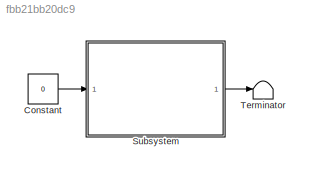
MODEL slx_fbb21bb20dc9
KIND model
CONFIG AbsTol = auto
CONFIG EnableMultiTasking = off
CONFIG FixedStep = auto
CONFIG MaxStep = auto
CONFIG MinStep = auto
CONFIG RelTol = 1e-3
CONFIG SampleTimeConstraint = Unconstrained
CONFIG SolverName = VariableStepAuto
CONFIG StartTime = 0.0
CONFIG StopTime = 10.0
BLOCK [Constant] Constant
  Value = 0
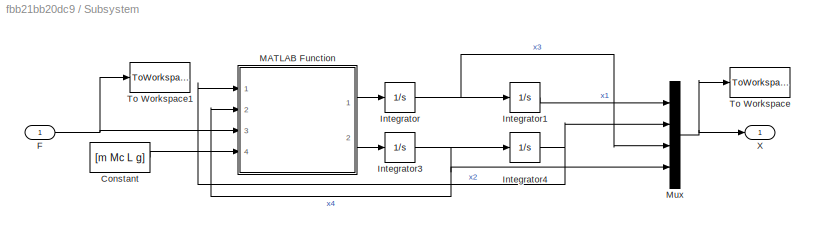
BLOCK [SubSystem] Subsystem
  Ports = [1, 1]
  RequestExecContextInheritance = off
BLOCK [Constant] Subsystem/Constant
  Value = [m Mc L g]
BLOCK [Inport] Subsystem/F
BLOCK [Integrator] Subsystem/Integrator
  InitialCondition = x0(3)
  Ports = [1, 1]
BLOCK [Integrator] Subsystem/Integrator1
  InitialCondition = x0(1)
  Ports = [1, 1]
BLOCK [Integrator] Subsystem/Integrator3
  InitialCondition = x0(4)
  Ports = [1, 1]
BLOCK [Integrator] Subsystem/Integrator4
  InitialCondition = x0(2)
  Ports = [1, 1]
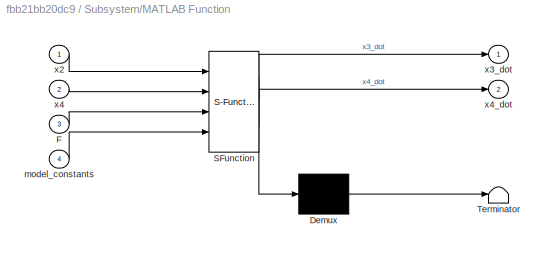
BLOCK [SubSystem] Subsystem/MATLAB Function
  ErrorFcn = Stateflow.Translate.translate
  PermitHierarchicalResolution = ExplicitOnly
  Ports = [4, 2]
  RequestExecContextInheritance = off
  SFBlockType = MATLAB Function
  TreatAsAtomicUnit = on
BLOCK [Demux] Subsystem/MATLAB Function/ Demux 
  Outputs = 1
  Ports = [1, 1]
BLOCK [S-Function] Subsystem/MATLAB Function/ SFunction 
  EnableBusSupport = off
  FunctionName = sf_sfun
  PortCounts = [4 3]
  Ports = [4, 3]
  SFcnIsStateOwnerBlock = off
  SFunctionDeploymentMode = off
  Tag = Stateflow S-Function 2
BLOCK [Terminator] Subsystem/MATLAB Function/ Terminator 
BLOCK [Inport] Subsystem/MATLAB Function/F
  Port = 3
BLOCK [Inport] Subsystem/MATLAB Function/model_constants
  Port = 4
BLOCK [Inport] Subsystem/MATLAB Function/x2
BLOCK [Outport] Subsystem/MATLAB Function/x3_dot
BLOCK [Inport] Subsystem/MATLAB Function/x4
  Port = 2
BLOCK [Outport] Subsystem/MATLAB Function/x4_dot
  Port = 2
BLOCK [Mux] Subsystem/Mux
  DisplayOption = bar
  Ports = [4, 1]
BLOCK [ToWorkspace] Subsystem/To Workspace
  FixptAsFi = on
  MaxDataPoints = inf
  Ports = [1]
  SampleTime = -1
  VariableName = pendulum
BLOCK [ToWorkspace] Subsystem/To Workspace1
  FixptAsFi = on
  MaxDataPoints = inf
  Ports = [1]
  SampleTime = -1
  VariableName = simout1
BLOCK [Outport] Subsystem/X
BLOCK [Terminator] Terminator
LINE Constant:1 -> Subsystem:1
LINE Subsystem/Constant:1 -> Subsystem/MATLAB Function:4
NET Subsystem/F:1 -> Subsystem/MATLAB Function:3, Subsystem/To Workspace1:1
LINE Subsystem/Integrator1:1 -> Subsystem/Mux:1
NET Subsystem/Integrator3:1 -> Subsystem/Integrator4:1, Subsystem/MATLAB Function:2, Subsystem/Mux:4
NET Subsystem/Integrator4:1 -> Subsystem/MATLAB Function:1, Subsystem/Mux:2
NET Subsystem/Integrator:1 -> Subsystem/Integrator1:1, Subsystem/Mux:3
LINE Subsystem/MATLAB Function:1 -> Subsystem/Integrator:1
LINE Subsystem/MATLAB Function:2 -> Subsystem/Integrator3:1
NET Subsystem/Mux:1 -> Subsystem/To Workspace:1, Subsystem/X:1
LINE Subsystem:1 -> Terminator:1
note: NET lines group one-source signal fan-out (src -> all destinations, sorted); 1:1 wires keep LINE
CHART Subsystem/MATLAB Function states=1 transitions=1
  STATE_LABEL 'eML_blk_kernel()'
  STATE_LABEL 'SCRIPT:\nfunction [x3_dot, x4_dot]= nonlineqn(x2, x4, F, model_constants)\n\nm = model_constants(1);\nMc = model_constants(2);\nL = model_constants(3);\ng = model_constants(4);\n\nx3_dot = (((x4)^2 * L * m * sin(x2)) - (g * m * sin(x2) * cos(2)) + F) / (Mc + m - (m * cos(x2)^2));\nx4_dot = ((-1 * L * m * sin(x2) * cos(x2) * (x4)^2) + (g * (Mc + m) * sin(x2)) - (cos(x2) * F)) / (L * (Mc + m - (m * cos(x2)^2...<+4ch>'
CHART  states=0 transitions=0
